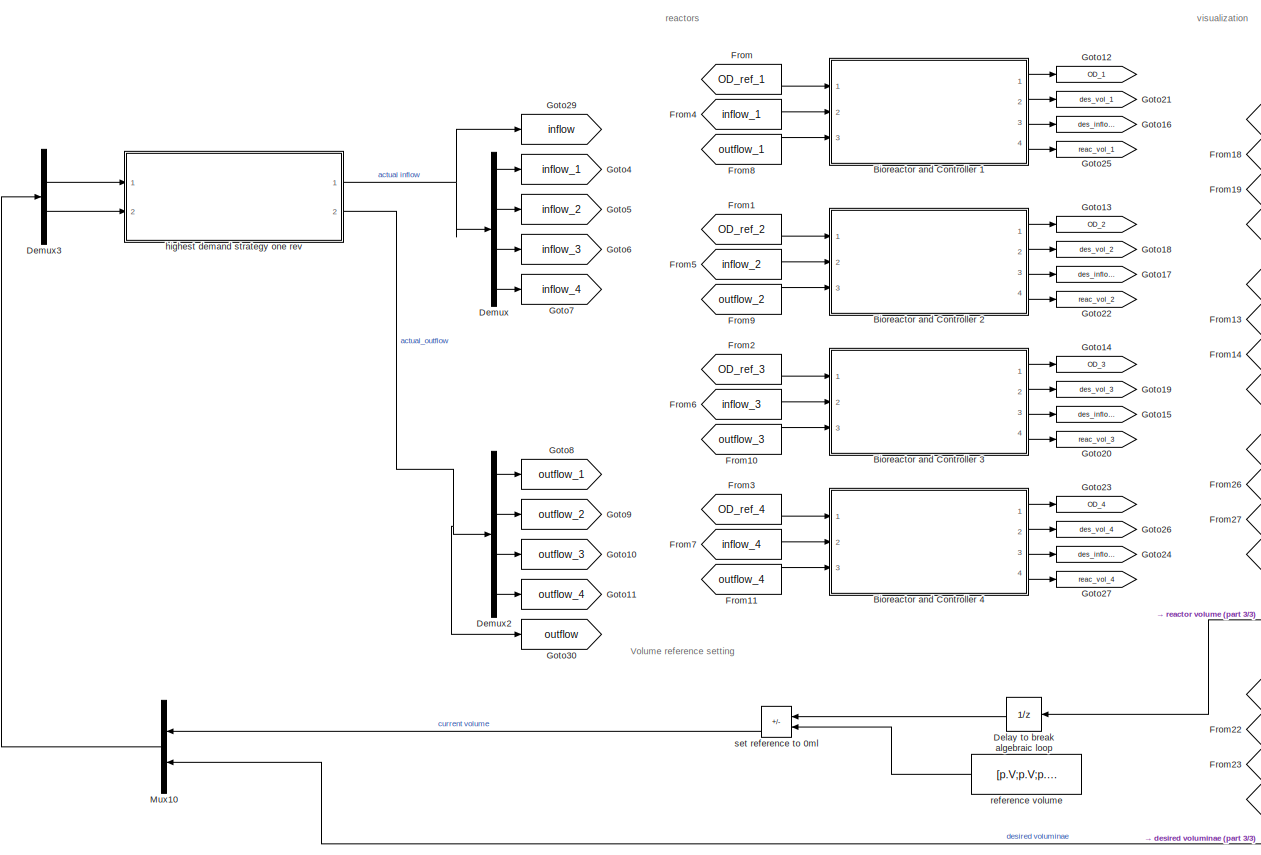
[diagram: root canvas - part 1/3, center side, full height]
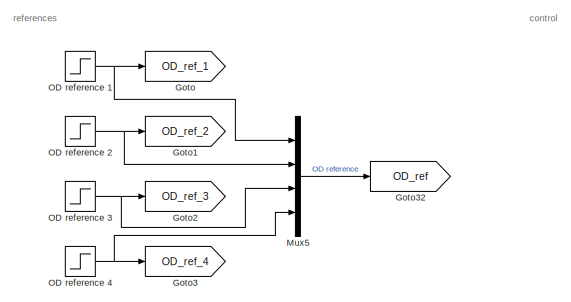
[diagram: root canvas - part 2/3, top left region]
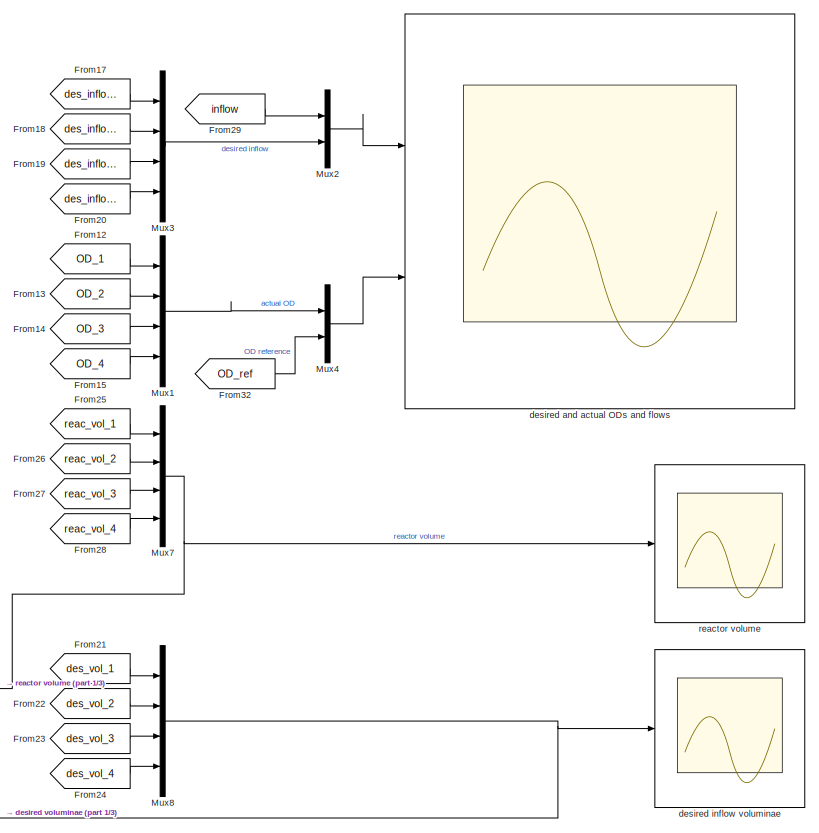
[diagram: root canvas - part 3/3, right side, full height]
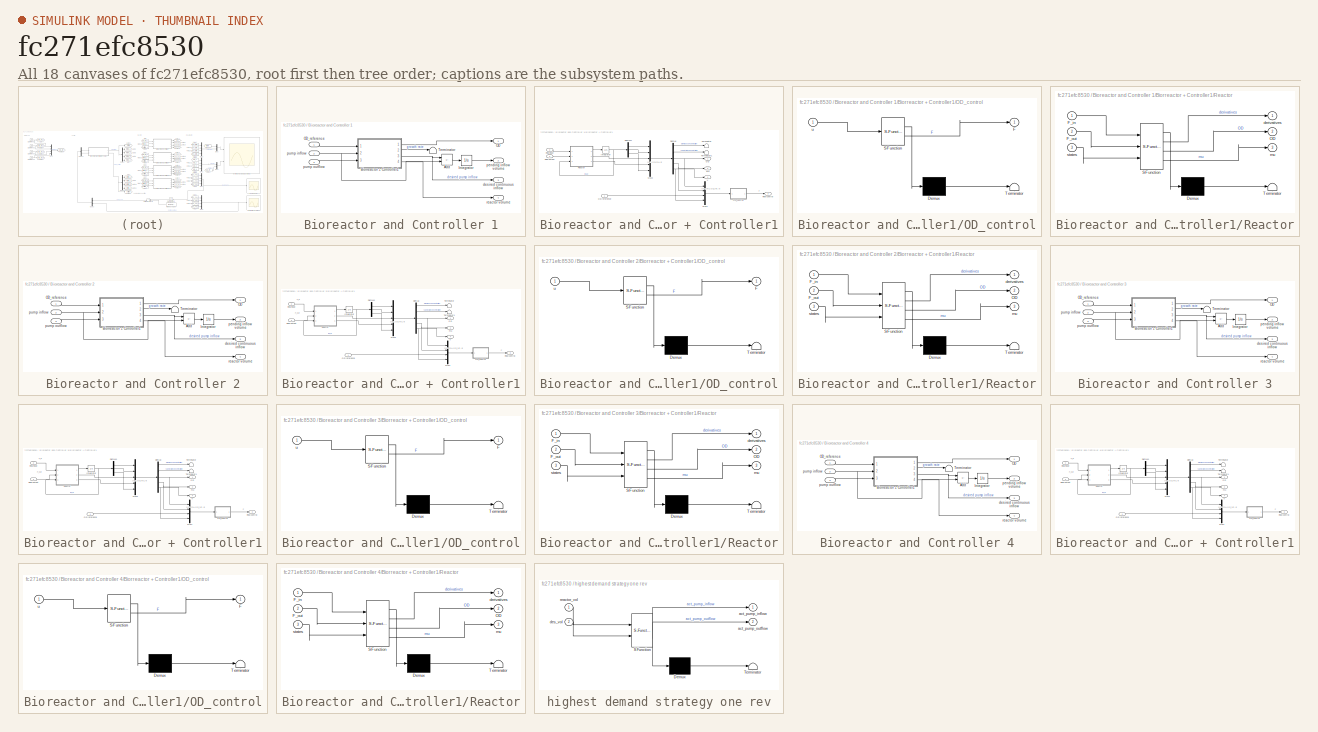
[diagram: thumbnail index - all 18 canvases of the model, root first then tree order]
MODEL slx_fc271efc8530
KIND model
CONFIG AbsTol = 1e-6
CONFIG EnableMultiTasking = off
CONFIG FixedStep = h
CONFIG MaxStep = 1
CONFIG MinStep = auto
CONFIG RelTol = 1e-3
CONFIG SampleTimeConstraint = Unconstrained
CONFIG SolverName = FixedStepAuto
CONFIG StartTime = 0.0
CONFIG StopTime = 1000
BLOCK [SubSystem] Bioreactor and Controller 1
  Ports = [3, 4]
  RequestExecContextInheritance = off
BLOCK [Sum] Bioreactor and Controller 1/Add
  IconShape = rectangular
  Inputs = +-
  Ports = [2, 1]
BLOCK [SubSystem] Bioreactor and Controller 1/Biorreactor + Controller1
  Ports = [3, 4]
  RequestExecContextInheritance = off
BLOCK [Demux] Bioreactor and Controller 1/Biorreactor + Controller1/Demux
  Outputs = 5
  Ports = [1, 5]
BLOCK [Demux] Bioreactor and Controller 1/Biorreactor + Controller1/Demux1
  Outputs = 3
  Ports = [1, 3]
BLOCK [Outport] Bioreactor and Controller 1/Biorreactor + Controller1/Flow control
  Port = 3
BLOCK [Inport] Bioreactor and Controller 1/Biorreactor + Controller1/Flow input
  Port = 2
BLOCK [Inport] Bioreactor and Controller 1/Biorreactor + Controller1/Flow output
  Port = 3
BLOCK [Integrator] Bioreactor and Controller 1/Biorreactor + Controller1/Integrator
  InitialCondition = [0.1 16 15]
  Ports = [1, 1]
BLOCK [Mux] Bioreactor and Controller 1/Biorreactor + Controller1/Mux1
  DisplayOption = bar
  Ports = [4, 1]
BLOCK [Mux] Bioreactor and Controller 1/Biorreactor + Controller1/Mux2
  DisplayOption = bar
  Inputs = 5
  Ports = [5, 1]
BLOCK [Outport] Bioreactor and Controller 1/Biorreactor + Controller1/OD
BLOCK [Inport] Bioreactor and Controller 1/Biorreactor + Controller1/OD reference
BLOCK [SubSystem] Bioreactor and Controller 1/Biorreactor + Controller1/OD_control
  ErrorFcn = Stateflow.Translate.translate
  PermitHierarchicalResolution = ExplicitOnly
  Ports = [1, 1]
  RequestExecContextInheritance = off
  SFBlockType = MATLAB Function
  TreatAsAtomicUnit = on
BLOCK [Demux] Bioreactor and Controller 1/Biorreactor + Controller1/OD_control/ Demux 
  Outputs = 1
  Ports = [1, 1]
BLOCK [S-Function] Bioreactor and Controller 1/Biorreactor + Controller1/OD_control/ SFunction 
  EnableBusSupport = on
  FunctionName = sf_sfun
  PortCounts = [1 2]
  Ports = [1, 2]
  SFcnIsStateOwnerBlock = off
  SFunctionDeploymentMode = off
  Tag = Stateflow S-Function 3
BLOCK [Terminator] Bioreactor and Controller 1/Biorreactor + Controller1/OD_control/ Terminator 
BLOCK [Outport] Bioreactor and Controller 1/Biorreactor + Controller1/OD_control/F
BLOCK [Inport] Bioreactor and Controller 1/Biorreactor + Controller1/OD_control/u
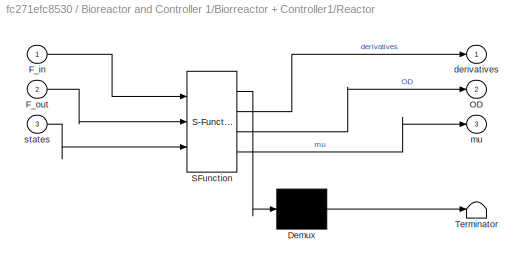
BLOCK [SubSystem] Bioreactor and Controller 1/Biorreactor + Controller1/Reactor
  ErrorFcn = Stateflow.Translate.translate
  PermitHierarchicalResolution = ExplicitOnly
  Ports = [3, 3]
  RequestExecContextInheritance = off
  SFBlockType = MATLAB Function
  TreatAsAtomicUnit = on
BLOCK [Demux] Bioreactor and Controller 1/Biorreactor + Controller1/Reactor/ Demux 
  Outputs = 1
  Ports = [1, 1]
BLOCK [S-Function] Bioreactor and Controller 1/Biorreactor + Controller1/Reactor/ SFunction 
  EnableBusSupport = on
  FunctionName = sf_sfun
  Parameters = p
  PortCounts = [3 4]
  Ports = [3, 4]
  SFcnIsStateOwnerBlock = off
  SFunctionDeploymentMode = off
  Tag = Stateflow S-Function 2
BLOCK [Terminator] Bioreactor and Controller 1/Biorreactor + Controller1/Reactor/ Terminator 
BLOCK [Inport] Bioreactor and Controller 1/Biorreactor + Controller1/Reactor/F_in
BLOCK [Inport] Bioreactor and Controller 1/Biorreactor + Controller1/Reactor/F_out
  Port = 2
BLOCK [Outport] Bioreactor and Controller 1/Biorreactor + Controller1/Reactor/OD
  Port = 2
BLOCK [Outport] Bioreactor and Controller 1/Biorreactor + Controller1/Reactor/derivatives
BLOCK [Outport] Bioreactor and Controller 1/Biorreactor + Controller1/Reactor/mu
  Port = 3
BLOCK [Inport] Bioreactor and Controller 1/Biorreactor + Controller1/Reactor/states
  Port = 3
BLOCK [Terminator] Bioreactor and Controller 1/Biorreactor + Controller1/Terminator
BLOCK [Terminator] Bioreactor and Controller 1/Biorreactor + Controller1/Terminator1
BLOCK [Outport] Bioreactor and Controller 1/Biorreactor + Controller1/V
  Port = 4
BLOCK [Outport] Bioreactor and Controller 1/Biorreactor + Controller1/mu
  Port = 2
BLOCK [Integrator] Bioreactor and Controller 1/Integrator
  Ports = [1, 1]
BLOCK [Outport] Bioreactor and Controller 1/OD
BLOCK [Inport] Bioreactor and Controller 1/OD_reference
BLOCK [Terminator] Bioreactor and Controller 1/Terminator
BLOCK [Outport] Bioreactor and Controller 1/desired continuous inflow
  Port = 3
BLOCK [Outport] Bioreactor and Controller 1/pending inflow volume
  Port = 2
BLOCK [Inport] Bioreactor and Controller 1/pump inflow
  Port = 2
BLOCK [Inport] Bioreactor and Controller 1/pump outflow
  Port = 3
BLOCK [Outport] Bioreactor and Controller 1/reactor volume
  Port = 4
BLOCK [SubSystem] Bioreactor and Controller 2
  Ports = [3, 4]
  RequestExecContextInheritance = off
BLOCK [Sum] Bioreactor and Controller 2/Add
  IconShape = rectangular
  Inputs = +-
  Ports = [2, 1]
BLOCK [SubSystem] Bioreactor and Controller 2/Biorreactor + Controller1
  Ports = [3, 4]
  RequestExecContextInheritance = off
BLOCK [Demux] Bioreactor and Controller 2/Biorreactor + Controller1/Demux
  Outputs = 5
  Ports = [1, 5]
BLOCK [Demux] Bioreactor and Controller 2/Biorreactor + Controller1/Demux1
  Outputs = 3
  Ports = [1, 3]
BLOCK [Outport] Bioreactor and Controller 2/Biorreactor + Controller1/Flow control
  Port = 3
BLOCK [Inport] Bioreactor and Controller 2/Biorreactor + Controller1/Flow input
  Port = 2
BLOCK [Inport] Bioreactor and Controller 2/Biorreactor + Controller1/Flow output
  Port = 3
BLOCK [Integrator] Bioreactor and Controller 2/Biorreactor + Controller1/Integrator
  InitialCondition = [0.1 16 15]
  Ports = [1, 1]
BLOCK [Mux] Bioreactor and Controller 2/Biorreactor + Controller1/Mux1
  DisplayOption = bar
  Ports = [4, 1]
BLOCK [Mux] Bioreactor and Controller 2/Biorreactor + Controller1/Mux2
  DisplayOption = bar
  Inputs = 5
  Ports = [5, 1]
BLOCK [Outport] Bioreactor and Controller 2/Biorreactor + Controller1/OD
BLOCK [Inport] Bioreactor and Controller 2/Biorreactor + Controller1/OD reference
BLOCK [SubSystem] Bioreactor and Controller 2/Biorreactor + Controller1/OD_control
  ErrorFcn = Stateflow.Translate.translate
  PermitHierarchicalResolution = ExplicitOnly
  Ports = [1, 1]
  RequestExecContextInheritance = off
  SFBlockType = MATLAB Function
  TreatAsAtomicUnit = on
BLOCK [Demux] Bioreactor and Controller 2/Biorreactor + Controller1/OD_control/ Demux 
  Outputs = 1
  Ports = [1, 1]
BLOCK [S-Function] Bioreactor and Controller 2/Biorreactor + Controller1/OD_control/ SFunction 
  EnableBusSupport = on
  FunctionName = sf_sfun
  PortCounts = [1 2]
  Ports = [1, 2]
  SFcnIsStateOwnerBlock = off
  SFunctionDeploymentMode = off
  Tag = Stateflow S-Function 4
BLOCK [Terminator] Bioreactor and Controller 2/Biorreactor + Controller1/OD_control/ Terminator 
BLOCK [Outport] Bioreactor and Controller 2/Biorreactor + Controller1/OD_control/F
BLOCK [Inport] Bioreactor and Controller 2/Biorreactor + Controller1/OD_control/u
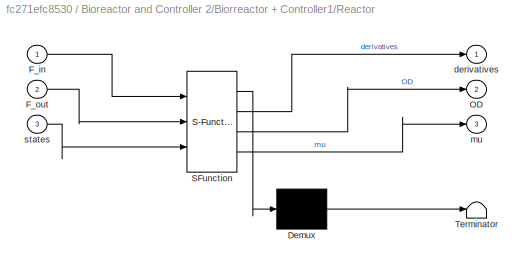
BLOCK [SubSystem] Bioreactor and Controller 2/Biorreactor + Controller1/Reactor
  ErrorFcn = Stateflow.Translate.translate
  PermitHierarchicalResolution = ExplicitOnly
  Ports = [3, 3]
  RequestExecContextInheritance = off
  SFBlockType = MATLAB Function
  TreatAsAtomicUnit = on
BLOCK [Demux] Bioreactor and Controller 2/Biorreactor + Controller1/Reactor/ Demux 
  Outputs = 1
  Ports = [1, 1]
BLOCK [S-Function] Bioreactor and Controller 2/Biorreactor + Controller1/Reactor/ SFunction 
  EnableBusSupport = on
  FunctionName = sf_sfun
  Parameters = p
  PortCounts = [3 4]
  Ports = [3, 4]
  SFcnIsStateOwnerBlock = off
  SFunctionDeploymentMode = off
  Tag = Stateflow S-Function 5
BLOCK [Terminator] Bioreactor and Controller 2/Biorreactor + Controller1/Reactor/ Terminator 
BLOCK [Inport] Bioreactor and Controller 2/Biorreactor + Controller1/Reactor/F_in
BLOCK [Inport] Bioreactor and Controller 2/Biorreactor + Controller1/Reactor/F_out
  Port = 2
BLOCK [Outport] Bioreactor and Controller 2/Biorreactor + Controller1/Reactor/OD
  Port = 2
BLOCK [Outport] Bioreactor and Controller 2/Biorreactor + Controller1/Reactor/derivatives
BLOCK [Outport] Bioreactor and Controller 2/Biorreactor + Controller1/Reactor/mu
  Port = 3
BLOCK [Inport] Bioreactor and Controller 2/Biorreactor + Controller1/Reactor/states
  Port = 3
BLOCK [Terminator] Bioreactor and Controller 2/Biorreactor + Controller1/Terminator
BLOCK [Terminator] Bioreactor and Controller 2/Biorreactor + Controller1/Terminator1
BLOCK [Outport] Bioreactor and Controller 2/Biorreactor + Controller1/V
  Port = 4
BLOCK [Outport] Bioreactor and Controller 2/Biorreactor + Controller1/mu
  Port = 2
BLOCK [Integrator] Bioreactor and Controller 2/Integrator
  Ports = [1, 1]
BLOCK [Outport] Bioreactor and Controller 2/OD
BLOCK [Inport] Bioreactor and Controller 2/OD_reference
BLOCK [Terminator] Bioreactor and Controller 2/Terminator
BLOCK [Outport] Bioreactor and Controller 2/desired continuous inflow
  Port = 3
BLOCK [Outport] Bioreactor and Controller 2/pending inflow volume
  Port = 2
BLOCK [Inport] Bioreactor and Controller 2/pump inflow
  Port = 2
BLOCK [Inport] Bioreactor and Controller 2/pump outflow
  Port = 3
BLOCK [Outport] Bioreactor and Controller 2/reactor volume
  Port = 4
BLOCK [SubSystem] Bioreactor and Controller 3
  Ports = [3, 4]
  RequestExecContextInheritance = off
BLOCK [Sum] Bioreactor and Controller 3/Add
  IconShape = rectangular
  Inputs = +-
  Ports = [2, 1]
BLOCK [SubSystem] Bioreactor and Controller 3/Biorreactor + Controller1
  Ports = [3, 4]
  RequestExecContextInheritance = off
BLOCK [Demux] Bioreactor and Controller 3/Biorreactor + Controller1/Demux
  Outputs = 5
  Ports = [1, 5]
BLOCK [Demux] Bioreactor and Controller 3/Biorreactor + Controller1/Demux1
  Outputs = 3
  Ports = [1, 3]
BLOCK [Outport] Bioreactor and Controller 3/Biorreactor + Controller1/Flow control
  Port = 3
BLOCK [Inport] Bioreactor and Controller 3/Biorreactor + Controller1/Flow input
  Port = 2
BLOCK [Inport] Bioreactor and Controller 3/Biorreactor + Controller1/Flow output
  Port = 3
BLOCK [Integrator] Bioreactor and Controller 3/Biorreactor + Controller1/Integrator
  InitialCondition = [0.1 16 15]
  Ports = [1, 1]
BLOCK [Mux] Bioreactor and Controller 3/Biorreactor + Controller1/Mux1
  DisplayOption = bar
  Ports = [4, 1]
BLOCK [Mux] Bioreactor and Controller 3/Biorreactor + Controller1/Mux2
  DisplayOption = bar
  Inputs = 5
  Ports = [5, 1]
BLOCK [Outport] Bioreactor and Controller 3/Biorreactor + Controller1/OD
BLOCK [Inport] Bioreactor and Controller 3/Biorreactor + Controller1/OD reference
BLOCK [SubSystem] Bioreactor and Controller 3/Biorreactor + Controller1/OD_control
  ErrorFcn = Stateflow.Translate.translate
  PermitHierarchicalResolution = ExplicitOnly
  Ports = [1, 1]
  RequestExecContextInheritance = off
  SFBlockType = MATLAB Function
  TreatAsAtomicUnit = on
BLOCK [Demux] Bioreactor and Controller 3/Biorreactor + Controller1/OD_control/ Demux 
  Outputs = 1
  Ports = [1, 1]
BLOCK [S-Function] Bioreactor and Controller 3/Biorreactor + Controller1/OD_control/ SFunction 
  EnableBusSupport = on
  FunctionName = sf_sfun
  PortCounts = [1 2]
  Ports = [1, 2]
  SFcnIsStateOwnerBlock = off
  SFunctionDeploymentMode = off
  Tag = Stateflow S-Function 6
BLOCK [Terminator] Bioreactor and Controller 3/Biorreactor + Controller1/OD_control/ Terminator 
BLOCK [Outport] Bioreactor and Controller 3/Biorreactor + Controller1/OD_control/F
BLOCK [Inport] Bioreactor and Controller 3/Biorreactor + Controller1/OD_control/u
BLOCK [SubSystem] Bioreactor and Controller 3/Biorreactor + Controller1/Reactor
  ErrorFcn = Stateflow.Translate.translate
  PermitHierarchicalResolution = ExplicitOnly
  Ports = [3, 3]
  RequestExecContextInheritance = off
  SFBlockType = MATLAB Function
  TreatAsAtomicUnit = on
BLOCK [Demux] Bioreactor and Controller 3/Biorreactor + Controller1/Reactor/ Demux 
  Outputs = 1
  Ports = [1, 1]
BLOCK [S-Function] Bioreactor and Controller 3/Biorreactor + Controller1/Reactor/ SFunction 
  EnableBusSupport = on
  FunctionName = sf_sfun
  Parameters = p
  PortCounts = [3 4]
  Ports = [3, 4]
  SFcnIsStateOwnerBlock = off
  SFunctionDeploymentMode = off
  Tag = Stateflow S-Function 7
BLOCK [Terminator] Bioreactor and Controller 3/Biorreactor + Controller1/Reactor/ Terminator 
BLOCK [Inport] Bioreactor and Controller 3/Biorreactor + Controller1/Reactor/F_in
BLOCK [Inport] Bioreactor and Controller 3/Biorreactor + Controller1/Reactor/F_out
  Port = 2
BLOCK [Outport] Bioreactor and Controller 3/Biorreactor + Controller1/Reactor/OD
  Port = 2
BLOCK [Outport] Bioreactor and Controller 3/Biorreactor + Controller1/Reactor/derivatives
BLOCK [Outport] Bioreactor and Controller 3/Biorreactor + Controller1/Reactor/mu
  Port = 3
BLOCK [Inport] Bioreactor and Controller 3/Biorreactor + Controller1/Reactor/states
  Port = 3
BLOCK [Terminator] Bioreactor and Controller 3/Biorreactor + Controller1/Terminator
BLOCK [Terminator] Bioreactor and Controller 3/Biorreactor + Controller1/Terminator1
BLOCK [Outport] Bioreactor and Controller 3/Biorreactor + Controller1/V
  Port = 4
BLOCK [Outport] Bioreactor and Controller 3/Biorreactor + Controller1/mu
  Port = 2
BLOCK [Integrator] Bioreactor and Controller 3/Integrator
  Ports = [1, 1]
BLOCK [Outport] Bioreactor and Controller 3/OD
BLOCK [Inport] Bioreactor and Controller 3/OD_reference
BLOCK [Terminator] Bioreactor and Controller 3/Terminator
BLOCK [Outport] Bioreactor and Controller 3/desired continuous inflow
  Port = 3
BLOCK [Outport] Bioreactor and Controller 3/pending inflow volume
  Port = 2
BLOCK [Inport] Bioreactor and Controller 3/pump inflow
  Port = 2
BLOCK [Inport] Bioreactor and Controller 3/pump outflow
  Port = 3
BLOCK [Outport] Bioreactor and Controller 3/reactor volume
  Port = 4
BLOCK [SubSystem] Bioreactor and Controller 4
  Ports = [3, 4]
  RequestExecContextInheritance = off
BLOCK [Sum] Bioreactor and Controller 4/Add
  IconShape = rectangular
  Inputs = +-
  Ports = [2, 1]
BLOCK [SubSystem] Bioreactor and Controller 4/Biorreactor + Controller1
  Ports = [3, 4]
  RequestExecContextInheritance = off
BLOCK [Demux] Bioreactor and Controller 4/Biorreactor + Controller1/Demux
  Outputs = 5
  Ports = [1, 5]
BLOCK [Demux] Bioreactor and Controller 4/Biorreactor + Controller1/Demux1
  Outputs = 3
  Ports = [1, 3]
BLOCK [Outport] Bioreactor and Controller 4/Biorreactor + Controller1/Flow control
  Port = 3
BLOCK [Inport] Bioreactor and Controller 4/Biorreactor + Controller1/Flow input
  Port = 2
BLOCK [Inport] Bioreactor and Controller 4/Biorreactor + Controller1/Flow output
  Port = 3
BLOCK [Integrator] Bioreactor and Controller 4/Biorreactor + Controller1/Integrator
  InitialCondition = [0.1 16 15]
  Ports = [1, 1]
BLOCK [Mux] Bioreactor and Controller 4/Biorreactor + Controller1/Mux1
  DisplayOption = bar
  Ports = [4, 1]
BLOCK [Mux] Bioreactor and Controller 4/Biorreactor + Controller1/Mux2
  DisplayOption = bar
  Inputs = 5
  Ports = [5, 1]
BLOCK [Outport] Bioreactor and Controller 4/Biorreactor + Controller1/OD
BLOCK [Inport] Bioreactor and Controller 4/Biorreactor + Controller1/OD reference
BLOCK [SubSystem] Bioreactor and Controller 4/Biorreactor + Controller1/OD_control
  ErrorFcn = Stateflow.Translate.translate
  PermitHierarchicalResolution = ExplicitOnly
  Ports = [1, 1]
  RequestExecContextInheritance = off
  SFBlockType = MATLAB Function
  TreatAsAtomicUnit = on
BLOCK [Demux] Bioreactor and Controller 4/Biorreactor + Controller1/OD_control/ Demux 
  Outputs = 1
  Ports = [1, 1]
BLOCK [S-Function] Bioreactor and Controller 4/Biorreactor + Controller1/OD_control/ SFunction 
  EnableBusSupport = on
  FunctionName = sf_sfun
  PortCounts = [1 2]
  Ports = [1, 2]
  SFcnIsStateOwnerBlock = off
  SFunctionDeploymentMode = off
  Tag = Stateflow S-Function 8
BLOCK [Terminator] Bioreactor and Controller 4/Biorreactor + Controller1/OD_control/ Terminator 
BLOCK [Outport] Bioreactor and Controller 4/Biorreactor + Controller1/OD_control/F
BLOCK [Inport] Bioreactor and Controller 4/Biorreactor + Controller1/OD_control/u
BLOCK [SubSystem] Bioreactor and Controller 4/Biorreactor + Controller1/Reactor
  ErrorFcn = Stateflow.Translate.translate
  PermitHierarchicalResolution = ExplicitOnly
  Ports = [3, 3]
  RequestExecContextInheritance = off
  SFBlockType = MATLAB Function
  TreatAsAtomicUnit = on
BLOCK [Demux] Bioreactor and Controller 4/Biorreactor + Controller1/Reactor/ Demux 
  Outputs = 1
  Ports = [1, 1]
BLOCK [S-Function] Bioreactor and Controller 4/Biorreactor + Controller1/Reactor/ SFunction 
  EnableBusSupport = on
  FunctionName = sf_sfun
  Parameters = p
  PortCounts = [3 4]
  Ports = [3, 4]
  SFcnIsStateOwnerBlock = off
  SFunctionDeploymentMode = off
  Tag = Stateflow S-Function 9
BLOCK [Terminator] Bioreactor and Controller 4/Biorreactor + Controller1/Reactor/ Terminator 
BLOCK [Inport] Bioreactor and Controller 4/Biorreactor + Controller1/Reactor/F_in
BLOCK [Inport] Bioreactor and Controller 4/Biorreactor + Controller1/Reactor/F_out
  Port = 2
BLOCK [Outport] Bioreactor and Controller 4/Biorreactor + Controller1/Reactor/OD
  Port = 2
BLOCK [Outport] Bioreactor and Controller 4/Biorreactor + Controller1/Reactor/derivatives
BLOCK [Outport] Bioreactor and Controller 4/Biorreactor + Controller1/Reactor/mu
  Port = 3
BLOCK [Inport] Bioreactor and Controller 4/Biorreactor + Controller1/Reactor/states
  Port = 3
BLOCK [Terminator] Bioreactor and Controller 4/Biorreactor + Controller1/Terminator
BLOCK [Terminator] Bioreactor and Controller 4/Biorreactor + Controller1/Terminator1
BLOCK [Outport] Bioreactor and Controller 4/Biorreactor + Controller1/V
  Port = 4
BLOCK [Outport] Bioreactor and Controller 4/Biorreactor + Controller1/mu
  Port = 2
BLOCK [Integrator] Bioreactor and Controller 4/Integrator
  Ports = [1, 1]
BLOCK [Outport] Bioreactor and Controller 4/OD
BLOCK [Inport] Bioreactor and Controller 4/OD_reference
BLOCK [Terminator] Bioreactor and Controller 4/Terminator
BLOCK [Outport] Bioreactor and Controller 4/desired continuous inflow
  Port = 3
BLOCK [Outport] Bioreactor and Controller 4/pending inflow volume
  Port = 2
BLOCK [Inport] Bioreactor and Controller 4/pump inflow
  Port = 2
BLOCK [Inport] Bioreactor and Controller 4/pump outflow
  Port = 3
BLOCK [Outport] Bioreactor and Controller 4/reactor volume
  Port = 4
BLOCK [UnitDelay] Delay to break algebraic loop
  HasFrameUpgradeWarning = on
  InitialCondition = [15; 15; 15; 15]
  NameLocation = top
  SampleTime = -1
BLOCK [Demux] Demux
  Ports = [1, 4]
BLOCK [Demux] Demux2
  Ports = [1, 4]
BLOCK [Demux] Demux3
  Outputs = 2
  Ports = [1, 2]
BLOCK [From] From
  GotoTag = OD_ref_1
BLOCK [From] From1
  GotoTag = OD_ref_2
BLOCK [From] From10
  GotoTag = outflow_3
BLOCK [From] From11
  GotoTag = outflow_4
BLOCK [From] From12
  GotoTag = OD_1
BLOCK [From] From13
  GotoTag = OD_2
BLOCK [From] From14
  GotoTag = OD_3
BLOCK [From] From15
  GotoTag = OD_4
BLOCK [From] From17
  GotoTag = des_inflow_1
BLOCK [From] From18
  GotoTag = des_inflow_2
BLOCK [From] From19
  GotoTag = des_inflow_3
BLOCK [From] From2
  GotoTag = OD_ref_3
BLOCK [From] From20
  GotoTag = des_inflow_4
BLOCK [From] From21
  GotoTag = des_vol_1
BLOCK [From] From22
  GotoTag = des_vol_2
BLOCK [From] From23
  GotoTag = des_vol_3
BLOCK [From] From24
  GotoTag = des_vol_4
BLOCK [From] From25
  GotoTag = reac_vol_1
BLOCK [From] From26
  GotoTag = reac_vol_2
BLOCK [From] From27
  GotoTag = reac_vol_3
BLOCK [From] From28
  GotoTag = reac_vol_4
BLOCK [From] From29
  GotoTag = inflow
BLOCK [From] From3
  GotoTag = OD_ref_4
BLOCK [From] From32
  GotoTag = OD_ref
BLOCK [From] From4
  GotoTag = inflow_1
BLOCK [From] From5
  GotoTag = inflow_2
BLOCK [From] From6
  GotoTag = inflow_3
BLOCK [From] From7
  GotoTag = inflow_4
BLOCK [From] From8
  GotoTag = outflow_1
BLOCK [From] From9
  GotoTag = outflow_2
BLOCK [Goto] Goto
  GotoTag = OD_ref_1
BLOCK [Goto] Goto1
  GotoTag = OD_ref_2
BLOCK [Goto] Goto10
  GotoTag = outflow_3
BLOCK [Goto] Goto11
  GotoTag = outflow_4
BLOCK [Goto] Goto12
  GotoTag = OD_1
BLOCK [Goto] Goto13
  GotoTag = OD_2
BLOCK [Goto] Goto14
  GotoTag = OD_3
BLOCK [Goto] Goto15
  GotoTag = des_inflow_3
BLOCK [Goto] Goto16
  GotoTag = des_inflow_1
BLOCK [Goto] Goto17
  GotoTag = des_inflow_2
BLOCK [Goto] Goto18
  GotoTag = des_vol_2
BLOCK [Goto] Goto19
  GotoTag = des_vol_3
BLOCK [Goto] Goto2
  GotoTag = OD_ref_3
BLOCK [Goto] Goto20
  GotoTag = reac_vol_3
BLOCK [Goto] Goto21
  GotoTag = des_vol_1
BLOCK [Goto] Goto22
  GotoTag = reac_vol_2
BLOCK [Goto] Goto23
  GotoTag = OD_4
BLOCK [Goto] Goto24
  GotoTag = des_inflow_4
BLOCK [Goto] Goto25
  GotoTag = reac_vol_1
BLOCK [Goto] Goto26
  GotoTag = des_vol_4
BLOCK [Goto] Goto27
  GotoTag = reac_vol_4
BLOCK [Goto] Goto29
  GotoTag = inflow
BLOCK [Goto] Goto3
  GotoTag = OD_ref_4
BLOCK [Goto] Goto30
  GotoTag = outflow
BLOCK [Goto] Goto32
  GotoTag = OD_ref
BLOCK [Goto] Goto4
  GotoTag = inflow_1
BLOCK [Goto] Goto5
  GotoTag = inflow_2
BLOCK [Goto] Goto6
  GotoTag = inflow_3
BLOCK [Goto] Goto7
  GotoTag = inflow_4
BLOCK [Goto] Goto8
  GotoTag = outflow_1
BLOCK [Goto] Goto9
  GotoTag = outflow_2
BLOCK [Mux] Mux1
  DisplayOption = bar
  Ports = [4, 1]
BLOCK [Mux] Mux10
  DisplayOption = bar
  Inputs = 2
  NameLocation = top
  Ports = [2, 1]
BLOCK [Mux] Mux2
  DisplayOption = bar
  Inputs = 2
  Ports = [2, 1]
BLOCK [Mux] Mux3
  DisplayOption = bar
  Ports = [4, 1]
BLOCK [Mux] Mux4
  DisplayOption = bar
  Inputs = 2
  Ports = [2, 1]
BLOCK [Mux] Mux5
  DisplayOption = bar
  Ports = [4, 1]
BLOCK [Mux] Mux7
  DisplayOption = bar
  Ports = [4, 1]
BLOCK [Mux] Mux8
  DisplayOption = bar
  Ports = [4, 1]
BLOCK [Step] OD reference 1
  After = p.r1.final_val
  Before = p.r1.init_val
  SampleTime = 0
  Time = p.r1.step_time
BLOCK [Step] OD reference 2
  After = p.r2.final_val
  Before = p.r2.init_val
  SampleTime = 0
  Time = p.r2.step_time
BLOCK [Step] OD reference 3
  After = p.r3.final_val
  Before = p.r3.init_val
  SampleTime = 0
  Time = p.r3.step_time
BLOCK [Step] OD reference 4
  After = p.r4.final_val
  Before = p.r4.init_val
  SampleTime = 0
  Time = p.r4.step_time
BLOCK [Scope] desired and actual ODs and flows
  Floating = off
  NumInputPorts = 2
  Ports = [2]
  ScopeSpecificationString = Simulink.scopes.TimeScopeBlockCfg('CurrentConfiguration', extmgr.ConfigurationSet(extmgr.Configuration('Core','General UI',true),extmgr.Configuration('Core','Source UI',true),extmgr.Configuration('Sources','WiredSimulink',true,'DataLoggingVariableName','ScopeData1'),extmgr.Configuration('Visuals','Time Domain',true,'SerializedDisplays',{struct('MinYLimReal','-4.825','MaxYLimReal','43.425','YLabelR...<+2469ch>
BLOCK [Scope] desired inflow voluminae
  Floating = off
  NumInputPorts = 1
  Ports = [1]
  ScopeSpecificationString = Simulink.scopes.TimeScopeBlockCfg('CurrentConfiguration', extmgr.ConfigurationSet(extmgr.Configuration('Core','General UI',true),extmgr.Configuration('Core','Source UI',true),extmgr.Configuration('Sources','WiredSimulink',true,'DataLoggingVariableName','ScopeData1'),extmgr.Configuration('Visuals','Time Domain',true,'SerializedDisplays',{struct('MinYLimReal','-0.19491','MaxYLimReal','1.37807','YLab...<+1576ch>
BLOCK [SubSystem] highest demand strategy one rev
  ErrorFcn = Stateflow.Translate.translate
  PermitHierarchicalResolution = ExplicitOnly
  Ports = [2, 2]
  RequestExecContextInheritance = off
  SFBlockType = Chart
  TreatAsAtomicUnit = on
BLOCK [Demux] highest demand strategy one rev/ Demux 
  Outputs = 1
  Ports = [1, 1]
BLOCK [S-Function] highest demand strategy one rev/ SFunction 
  EnableBusSupport = on
  FunctionName = sf_sfun
  Parameters = p
  PortCounts = [2 3]
  Ports = [2, 3]
  SFcnIsStateOwnerBlock = off
  SFunctionDeploymentMode = off
  Tag = Stateflow S-Function 1
BLOCK [Terminator] highest demand strategy one rev/ Terminator 
BLOCK [Outport] highest demand strategy one rev/act_pump_inflow
BLOCK [Outport] highest demand strategy one rev/act_pump_outflow
  Port = 2
BLOCK [Inport] highest demand strategy one rev/des_vol
  Port = 2
BLOCK [Inport] highest demand strategy one rev/reactor_vol
BLOCK [Scope] reactor volume
  Floating = off
  NumInputPorts = 1
  Ports = [1]
  ScopeSpecificationString = Simulink.scopes.TimeScopeBlockCfg('CurrentConfiguration', extmgr.ConfigurationSet(extmgr.Configuration('Core','General UI',true),extmgr.Configuration('Core','Source UI',true),extmgr.Configuration('Sources','WiredSimulink',true,'DataLoggingVariableName','ScopeData1'),extmgr.Configuration('Visuals','Time Domain',true,'SerializedDisplays',{struct('MinYLimReal','14.67672','MaxYLimReal','17.13747','YLa...<+1532ch>
BLOCK [Constant] reference volume
  NameLocation = top
  Value = [p.V;p.V;p.V;p.V]
BLOCK [Sum] set reference to 0ml
  IconShape = rectangular
  Inputs = +-
  NameLocation = top
  Ports = [2, 1]
ANNOTATION (root): Volume reference setting
ANNOTATION (root): control
ANNOTATION (root): reactors
ANNOTATION (root): references
ANNOTATION (root): visualization
ANNOTATION Bioreactor and Controller 1/Biorreactor + Controller1: F
ANNOTATION Bioreactor and Controller 1/Biorreactor + Controller1: [OD,mu,OD_ref,V]
ANNOTATION Bioreactor and Controller 1/Biorreactor + Controller1: [x,s,OD,mu,V]
ANNOTATION Bioreactor and Controller 2/Biorreactor + Controller1: F
ANNOTATION Bioreactor and Controller 2/Biorreactor + Controller1: F_in
ANNOTATION Bioreactor and Controller 2/Biorreactor + Controller1: F_out
ANNOTATION Bioreactor and Controller 2/Biorreactor + Controller1: [OD,mu,OD_ref,V]
ANNOTATION Bioreactor and Controller 2/Biorreactor + Controller1: [x,s,OD,mu,V]
ANNOTATION Bioreactor and Controller 3/Biorreactor + Controller1: F
ANNOTATION Bioreactor and Controller 3/Biorreactor + Controller1: F_in
ANNOTATION Bioreactor and Controller 3/Biorreactor + Controller1: F_out
ANNOTATION Bioreactor and Controller 3/Biorreactor + Controller1: [OD,mu,OD_ref,V]
ANNOTATION Bioreactor and Controller 3/Biorreactor + Controller1: [x,s,OD,mu,V]
ANNOTATION Bioreactor and Controller 4/Biorreactor + Controller1: F
ANNOTATION Bioreactor and Controller 4/Biorreactor + Controller1: F_in
ANNOTATION Bioreactor and Controller 4/Biorreactor + Controller1: F_out
ANNOTATION Bioreactor and Controller 4/Biorreactor + Controller1: [OD,mu,OD_ref,V]
ANNOTATION Bioreactor and Controller 4/Biorreactor + Controller1: [x,s,OD,mu,V]
LINE Bioreactor and Controller 1/Add:1 -> Bioreactor and Controller 1/Integrator:1
LINE Bioreactor and Controller 1/Biorreactor + Controller1/Demux1:1 -> Bioreactor and Controller 1/Biorreactor + Controller1/Mux2:1
LINE Bioreactor and Controller 1/Biorreactor + Controller1/Demux1:2 -> Bioreactor and Controller 1/Biorreactor + Controller1/Mux2:2
LINE Bioreactor and Controller 1/Biorreactor + Controller1/Demux1:3 -> Bioreactor and Controller 1/Biorreactor + Controller1/Mux2:5
LINE Bioreactor and Controller 1/Biorreactor + Controller1/Demux:1 -> Bioreactor and Controller 1/Biorreactor + Controller1/Terminator:1
LINE Bioreactor and Controller 1/Biorreactor + Controller1/Demux:2 -> Bioreactor and Controller 1/Biorreactor + Controller1/Terminator1:1
NET Bioreactor and Controller 1/Biorreactor + Controller1/Demux:3 -> Bioreactor and Controller 1/Biorreactor + Controller1/Mux1:1, Bioreactor and Controller 1/Biorreactor + Controller1/OD:1
NET Bioreactor and Controller 1/Biorreactor + Controller1/Demux:4 -> Bioreactor and Controller 1/Biorreactor + Controller1/Mux1:2, Bioreactor and Controller 1/Biorreactor + Controller1/mu:1
NET Bioreactor and Controller 1/Biorreactor + Controller1/Demux:5 -> Bioreactor and Controller 1/Biorreactor + Controller1/Mux1:4, Bioreactor and Controller 1/Biorreactor + Controller1/V:1
LINE Bioreactor and Controller 1/Biorreactor + Controller1/Flow input:1 -> Bioreactor and Controller 1/Biorreactor + Controller1/Reactor:1
LINE Bioreactor and Controller 1/Biorreactor + Controller1/Flow output:1 -> Bioreactor and Controller 1/Biorreactor + Controller1/Reactor:2
NET Bioreactor and Controller 1/Biorreactor + Controller1/Integrator:1 -> Bioreactor and Controller 1/Biorreactor + Controller1/Demux1:1, Bioreactor and Controller 1/Biorreactor + Controller1/Reactor:3
LINE Bioreactor and Controller 1/Biorreactor + Controller1/Mux1:1 -> Bioreactor and Controller 1/Biorreactor + Controller1/OD_control:1
LINE Bioreactor and Controller 1/Biorreactor + Controller1/Mux2:1 -> Bioreactor and Controller 1/Biorreactor + Controller1/Demux:1
LINE Bioreactor and Controller 1/Biorreactor + Controller1/OD reference:1 -> Bioreactor and Controller 1/Biorreactor + Controller1/Mux1:3
LINE Bioreactor and Controller 1/Biorreactor + Controller1/OD_control:1 -> Bioreactor and Controller 1/Biorreactor + Controller1/Flow control:1
LINE Bioreactor and Controller 1/Biorreactor + Controller1/Reactor:1 -> Bioreactor and Controller 1/Biorreactor + Controller1/Integrator:1
LINE Bioreactor and Controller 1/Biorreactor + Controller1/Reactor:2 -> Bioreactor and Controller 1/Biorreactor + Controller1/Mux2:3
LINE Bioreactor and Controller 1/Biorreactor + Controller1/Reactor:3 -> Bioreactor and Controller 1/Biorreactor + Controller1/Mux2:4
LINE Bioreactor and Controller 1/Biorreactor + Controller1:1 -> Bioreactor and Controller 1/OD:1
LINE Bioreactor and Controller 1/Biorreactor + Controller1:2 -> Bioreactor and Controller 1/Terminator:1
NET Bioreactor and Controller 1/Biorreactor + Controller1:3 -> Bioreactor and Controller 1/Add:1, Bioreactor and Controller 1/desired continuous inflow:1
LINE Bioreactor and Controller 1/Biorreactor + Controller1:4 -> Bioreactor and Controller 1/reactor volume:1
LINE Bioreactor and Controller 1/Integrator:1 -> Bioreactor and Controller 1/pending inflow volume:1
LINE Bioreactor and Controller 1/OD_reference:1 -> Bioreactor and Controller 1/Biorreactor + Controller1:1
NET Bioreactor and Controller 1/pump inflow:1 -> Bioreactor and Controller 1/Add:2, Bioreactor and Controller 1/Biorreactor + Controller1:2
LINE Bioreactor and Controller 1/pump outflow:1 -> Bioreactor and Controller 1/Biorreactor + Controller1:3
LINE Bioreactor and Controller 1:1 -> Goto12:1
LINE Bioreactor and Controller 1:2 -> Goto21:1
LINE Bioreactor and Controller 1:3 -> Goto16:1
LINE Bioreactor and Controller 1:4 -> Goto25:1
LINE Bioreactor and Controller 2/Add:1 -> Bioreactor and Controller 2/Integrator:1
LINE Bioreactor and Controller 2/Biorreactor + Controller1/Demux1:1 -> Bioreactor and Controller 2/Biorreactor + Controller1/Mux2:1
LINE Bioreactor and Controller 2/Biorreactor + Controller1/Demux1:2 -> Bioreactor and Controller 2/Biorreactor + Controller1/Mux2:2
LINE Bioreactor and Controller 2/Biorreactor + Controller1/Demux1:3 -> Bioreactor and Controller 2/Biorreactor + Controller1/Mux2:5
LINE Bioreactor and Controller 2/Biorreactor + Controller1/Demux:1 -> Bioreactor and Controller 2/Biorreactor + Controller1/Terminator:1
LINE Bioreactor and Controller 2/Biorreactor + Controller1/Demux:2 -> Bioreactor and Controller 2/Biorreactor + Controller1/Terminator1:1
NET Bioreactor and Controller 2/Biorreactor + Controller1/Demux:3 -> Bioreactor and Controller 2/Biorreactor + Controller1/Mux1:1, Bioreactor and Controller 2/Biorreactor + Controller1/OD:1
NET Bioreactor and Controller 2/Biorreactor + Controller1/Demux:4 -> Bioreactor and Controller 2/Biorreactor + Controller1/Mux1:2, Bioreactor and Controller 2/Biorreactor + Controller1/mu:1
NET Bioreactor and Controller 2/Biorreactor + Controller1/Demux:5 -> Bioreactor and Controller 2/Biorreactor + Controller1/Mux1:4, Bioreactor and Controller 2/Biorreactor + Controller1/V:1
LINE Bioreactor and Controller 2/Biorreactor + Controller1/Flow input:1 -> Bioreactor and Controller 2/Biorreactor + Controller1/Reactor:1
LINE Bioreactor and Controller 2/Biorreactor + Controller1/Flow output:1 -> Bioreactor and Controller 2/Biorreactor + Controller1/Reactor:2
NET Bioreactor and Controller 2/Biorreactor + Controller1/Integrator:1 -> Bioreactor and Controller 2/Biorreactor + Controller1/Demux1:1, Bioreactor and Controller 2/Biorreactor + Controller1/Reactor:3
LINE Bioreactor and Controller 2/Biorreactor + Controller1/Mux1:1 -> Bioreactor and Controller 2/Biorreactor + Controller1/OD_control:1
LINE Bioreactor and Controller 2/Biorreactor + Controller1/Mux2:1 -> Bioreactor and Controller 2/Biorreactor + Controller1/Demux:1
LINE Bioreactor and Controller 2/Biorreactor + Controller1/OD reference:1 -> Bioreactor and Controller 2/Biorreactor + Controller1/Mux1:3
LINE Bioreactor and Controller 2/Biorreactor + Controller1/OD_control:1 -> Bioreactor and Controller 2/Biorreactor + Controller1/Flow control:1
LINE Bioreactor and Controller 2/Biorreactor + Controller1/Reactor:1 -> Bioreactor and Controller 2/Biorreactor + Controller1/Integrator:1
LINE Bioreactor and Controller 2/Biorreactor + Controller1/Reactor:2 -> Bioreactor and Controller 2/Biorreactor + Controller1/Mux2:3
LINE Bioreactor and Controller 2/Biorreactor + Controller1/Reactor:3 -> Bioreactor and Controller 2/Biorreactor + Controller1/Mux2:4
LINE Bioreactor and Controller 2/Biorreactor + Controller1:1 -> Bioreactor and Controller 2/OD:1
LINE Bioreactor and Controller 2/Biorreactor + Controller1:2 -> Bioreactor and Controller 2/Terminator:1
NET Bioreactor and Controller 2/Biorreactor + Controller1:3 -> Bioreactor and Controller 2/Add:1, Bioreactor and Controller 2/desired continuous inflow:1
LINE Bioreactor and Controller 2/Biorreactor + Controller1:4 -> Bioreactor and Controller 2/reactor volume:1
LINE Bioreactor and Controller 2/Integrator:1 -> Bioreactor and Controller 2/pending inflow volume:1
LINE Bioreactor and Controller 2/OD_reference:1 -> Bioreactor and Controller 2/Biorreactor + Controller1:1
NET Bioreactor and Controller 2/pump inflow:1 -> Bioreactor and Controller 2/Add:2, Bioreactor and Controller 2/Biorreactor + Controller1:2
LINE Bioreactor and Controller 2/pump outflow:1 -> Bioreactor and Controller 2/Biorreactor + Controller1:3
LINE Bioreactor and Controller 2:1 -> Goto13:1
LINE Bioreactor and Controller 2:2 -> Goto18:1
LINE Bioreactor and Controller 2:3 -> Goto17:1
LINE Bioreactor and Controller 2:4 -> Goto22:1
LINE Bioreactor and Controller 3/Add:1 -> Bioreactor and Controller 3/Integrator:1
LINE Bioreactor and Controller 3/Biorreactor + Controller1/Demux1:1 -> Bioreactor and Controller 3/Biorreactor + Controller1/Mux2:1
LINE Bioreactor and Controller 3/Biorreactor + Controller1/Demux1:2 -> Bioreactor and Controller 3/Biorreactor + Controller1/Mux2:2
LINE Bioreactor and Controller 3/Biorreactor + Controller1/Demux1:3 -> Bioreactor and Controller 3/Biorreactor + Controller1/Mux2:5
LINE Bioreactor and Controller 3/Biorreactor + Controller1/Demux:1 -> Bioreactor and Controller 3/Biorreactor + Controller1/Terminator:1
LINE Bioreactor and Controller 3/Biorreactor + Controller1/Demux:2 -> Bioreactor and Controller 3/Biorreactor + Controller1/Terminator1:1
NET Bioreactor and Controller 3/Biorreactor + Controller1/Demux:3 -> Bioreactor and Controller 3/Biorreactor + Controller1/Mux1:1, Bioreactor and Controller 3/Biorreactor + Controller1/OD:1
NET Bioreactor and Controller 3/Biorreactor + Controller1/Demux:4 -> Bioreactor and Controller 3/Biorreactor + Controller1/Mux1:2, Bioreactor and Controller 3/Biorreactor + Controller1/mu:1
NET Bioreactor and Controller 3/Biorreactor + Controller1/Demux:5 -> Bioreactor and Controller 3/Biorreactor + Controller1/Mux1:4, Bioreactor and Controller 3/Biorreactor + Controller1/V:1
LINE Bioreactor and Controller 3/Biorreactor + Controller1/Flow input:1 -> Bioreactor and Controller 3/Biorreactor + Controller1/Reactor:1
LINE Bioreactor and Controller 3/Biorreactor + Controller1/Flow output:1 -> Bioreactor and Controller 3/Biorreactor + Controller1/Reactor:2
NET Bioreactor and Controller 3/Biorreactor + Controller1/Integrator:1 -> Bioreactor and Controller 3/Biorreactor + Controller1/Demux1:1, Bioreactor and Controller 3/Biorreactor + Controller1/Reactor:3
LINE Bioreactor and Controller 3/Biorreactor + Controller1/Mux1:1 -> Bioreactor and Controller 3/Biorreactor + Controller1/OD_control:1
LINE Bioreactor and Controller 3/Biorreactor + Controller1/Mux2:1 -> Bioreactor and Controller 3/Biorreactor + Controller1/Demux:1
LINE Bioreactor and Controller 3/Biorreactor + Controller1/OD reference:1 -> Bioreactor and Controller 3/Biorreactor + Controller1/Mux1:3
LINE Bioreactor and Controller 3/Biorreactor + Controller1/OD_control:1 -> Bioreactor and Controller 3/Biorreactor + Controller1/Flow control:1
LINE Bioreactor and Controller 3/Biorreactor + Controller1/Reactor:1 -> Bioreactor and Controller 3/Biorreactor + Controller1/Integrator:1
LINE Bioreactor and Controller 3/Biorreactor + Controller1/Reactor:2 -> Bioreactor and Controller 3/Biorreactor + Controller1/Mux2:3
LINE Bioreactor and Controller 3/Biorreactor + Controller1/Reactor:3 -> Bioreactor and Controller 3/Biorreactor + Controller1/Mux2:4
LINE Bioreactor and Controller 3/Biorreactor + Controller1:1 -> Bioreactor and Controller 3/OD:1
LINE Bioreactor and Controller 3/Biorreactor + Controller1:2 -> Bioreactor and Controller 3/Terminator:1
NET Bioreactor and Controller 3/Biorreactor + Controller1:3 -> Bioreactor and Controller 3/Add:1, Bioreactor and Controller 3/desired continuous inflow:1
LINE Bioreactor and Controller 3/Biorreactor + Controller1:4 -> Bioreactor and Controller 3/reactor volume:1
LINE Bioreactor and Controller 3/Integrator:1 -> Bioreactor and Controller 3/pending inflow volume:1
LINE Bioreactor and Controller 3/OD_reference:1 -> Bioreactor and Controller 3/Biorreactor + Controller1:1
NET Bioreactor and Controller 3/pump inflow:1 -> Bioreactor and Controller 3/Add:2, Bioreactor and Controller 3/Biorreactor + Controller1:2
LINE Bioreactor and Controller 3/pump outflow:1 -> Bioreactor and Controller 3/Biorreactor + Controller1:3
LINE Bioreactor and Controller 3:1 -> Goto14:1
LINE Bioreactor and Controller 3:2 -> Goto19:1
LINE Bioreactor and Controller 3:3 -> Goto15:1
LINE Bioreactor and Controller 3:4 -> Goto20:1
LINE Bioreactor and Controller 4/Add:1 -> Bioreactor and Controller 4/Integrator:1
LINE Bioreactor and Controller 4/Biorreactor + Controller1/Demux1:1 -> Bioreactor and Controller 4/Biorreactor + Controller1/Mux2:1
LINE Bioreactor and Controller 4/Biorreactor + Controller1/Demux1:2 -> Bioreactor and Controller 4/Biorreactor + Controller1/Mux2:2
LINE Bioreactor and Controller 4/Biorreactor + Controller1/Demux1:3 -> Bioreactor and Controller 4/Biorreactor + Controller1/Mux2:5
LINE Bioreactor and Controller 4/Biorreactor + Controller1/Demux:1 -> Bioreactor and Controller 4/Biorreactor + Controller1/Terminator:1
LINE Bioreactor and Controller 4/Biorreactor + Controller1/Demux:2 -> Bioreactor and Controller 4/Biorreactor + Controller1/Terminator1:1
NET Bioreactor and Controller 4/Biorreactor + Controller1/Demux:3 -> Bioreactor and Controller 4/Biorreactor + Controller1/Mux1:1, Bioreactor and Controller 4/Biorreactor + Controller1/OD:1
NET Bioreactor and Controller 4/Biorreactor + Controller1/Demux:4 -> Bioreactor and Controller 4/Biorreactor + Controller1/Mux1:2, Bioreactor and Controller 4/Biorreactor + Controller1/mu:1
NET Bioreactor and Controller 4/Biorreactor + Controller1/Demux:5 -> Bioreactor and Controller 4/Biorreactor + Controller1/Mux1:4, Bioreactor and Controller 4/Biorreactor + Controller1/V:1
LINE Bioreactor and Controller 4/Biorreactor + Controller1/Flow input:1 -> Bioreactor and Controller 4/Biorreactor + Controller1/Reactor:1
LINE Bioreactor and Controller 4/Biorreactor + Controller1/Flow output:1 -> Bioreactor and Controller 4/Biorreactor + Controller1/Reactor:2
NET Bioreactor and Controller 4/Biorreactor + Controller1/Integrator:1 -> Bioreactor and Controller 4/Biorreactor + Controller1/Demux1:1, Bioreactor and Controller 4/Biorreactor + Controller1/Reactor:3
LINE Bioreactor and Controller 4/Biorreactor + Controller1/Mux1:1 -> Bioreactor and Controller 4/Biorreactor + Controller1/OD_control:1
LINE Bioreactor and Controller 4/Biorreactor + Controller1/Mux2:1 -> Bioreactor and Controller 4/Biorreactor + Controller1/Demux:1
LINE Bioreactor and Controller 4/Biorreactor + Controller1/OD reference:1 -> Bioreactor and Controller 4/Biorreactor + Controller1/Mux1:3
LINE Bioreactor and Controller 4/Biorreactor + Controller1/OD_control:1 -> Bioreactor and Controller 4/Biorreactor + Controller1/Flow control:1
LINE Bioreactor and Controller 4/Biorreactor + Controller1/Reactor:1 -> Bioreactor and Controller 4/Biorreactor + Controller1/Integrator:1
LINE Bioreactor and Controller 4/Biorreactor + Controller1/Reactor:2 -> Bioreactor and Controller 4/Biorreactor + Controller1/Mux2:3
LINE Bioreactor and Controller 4/Biorreactor + Controller1/Reactor:3 -> Bioreactor and Controller 4/Biorreactor + Controller1/Mux2:4
LINE Bioreactor and Controller 4/Biorreactor + Controller1:1 -> Bioreactor and Controller 4/OD:1
LINE Bioreactor and Controller 4/Biorreactor + Controller1:2 -> Bioreactor and Controller 4/Terminator:1
NET Bioreactor and Controller 4/Biorreactor + Controller1:3 -> Bioreactor and Controller 4/Add:1, Bioreactor and Controller 4/desired continuous inflow:1
LINE Bioreactor and Controller 4/Biorreactor + Controller1:4 -> Bioreactor and Controller 4/reactor volume:1
LINE Bioreactor and Controller 4/Integrator:1 -> Bioreactor and Controller 4/pending inflow volume:1
LINE Bioreactor and Controller 4/OD_reference:1 -> Bioreactor and Controller 4/Biorreactor + Controller1:1
NET Bioreactor and Controller 4/pump inflow:1 -> Bioreactor and Controller 4/Add:2, Bioreactor and Controller 4/Biorreactor + Controller1:2
LINE Bioreactor and Controller 4/pump outflow:1 -> Bioreactor and Controller 4/Biorreactor + Controller1:3
LINE Bioreactor and Controller 4:1 -> Goto23:1
LINE Bioreactor and Controller 4:2 -> Goto26:1
LINE Bioreactor and Controller 4:3 -> Goto24:1
LINE Bioreactor and Controller 4:4 -> Goto27:1
LINE Delay to break algebraic loop:1 -> set reference to 0ml:1
LINE Demux2:1 -> Goto8:1
LINE Demux2:2 -> Goto9:1
LINE Demux2:3 -> Goto10:1
LINE Demux2:4 -> Goto11:1
LINE Demux3:1 -> highest demand strategy one rev:1
LINE Demux3:2 -> highest demand strategy one rev:2
LINE Demux:1 -> Goto4:1
LINE Demux:2 -> Goto5:1
LINE Demux:3 -> Goto6:1
LINE Demux:4 -> Goto7:1
LINE From10:1 -> Bioreactor and Controller 3:3
LINE From11:1 -> Bioreactor and Controller 4:3
LINE From12:1 -> Mux1:1
LINE From13:1 -> Mux1:2
LINE From14:1 -> Mux1:3
LINE From15:1 -> Mux1:4
LINE From17:1 -> Mux3:1
LINE From18:1 -> Mux3:2
LINE From19:1 -> Mux3:3
LINE From1:1 -> Bioreactor and Controller 2:1
LINE From20:1 -> Mux3:4
LINE From21:1 -> Mux8:1
LINE From22:1 -> Mux8:2
LINE From23:1 -> Mux8:3
LINE From24:1 -> Mux8:4
LINE From25:1 -> Mux7:1
LINE From26:1 -> Mux7:2
LINE From27:1 -> Mux7:3
LINE From28:1 -> Mux7:4
LINE From29:1 -> Mux2:1
LINE From2:1 -> Bioreactor and Controller 3:1
LINE From32:1 -> Mux4:2
LINE From3:1 -> Bioreactor and Controller 4:1
LINE From4:1 -> Bioreactor and Controller 1:2
LINE From5:1 -> Bioreactor and Controller 2:2
LINE From6:1 -> Bioreactor and Controller 3:2
LINE From7:1 -> Bioreactor and Controller 4:2
LINE From8:1 -> Bioreactor and Controller 1:3
LINE From9:1 -> Bioreactor and Controller 2:3
LINE From:1 -> Bioreactor and Controller 1:1
LINE Mux10:1 -> Demux3:1
LINE Mux1:1 -> Mux4:1
LINE Mux2:1 -> desired and actual ODs and flows:1
LINE Mux3:1 -> Mux2:2
LINE Mux4:1 -> desired and actual ODs and flows:2
LINE Mux5:1 -> Goto32:1
NET Mux7:1 -> Delay to break algebraic loop:1, reactor volume:1
NET Mux8:1 -> Mux10:2, desired inflow voluminae:1
NET OD reference 1:1 -> Goto:1, Mux5:1
NET OD reference 2:1 -> Goto1:1, Mux5:2
NET OD reference 3:1 -> Goto2:1, Mux5:3
NET OD reference 4:1 -> Goto3:1, Mux5:4
NET highest demand strategy one rev:1 -> Demux:1, Goto29:1
NET highest demand strategy one rev:2 -> Demux2:1, Goto30:1
LINE reference volume:1 -> set reference to 0ml:2
LINE set reference to 0ml:1 -> Mux10:1
note: NET lines group one-source signal fan-out (src -> all destinations, sorted); 1:1 wires keep LINE
CHART highest demand strategy one rev states=15 transitions=16
  STATE_LABEL 'procedures'
  STATE_LABEL 'normal'
  STATE_LABEL 'sampling\nentry: sampling_req=true;'
  STATE_LABEL 'after(15, sec)'
  STATE_LABEL 'sampling_done'
  STATE_LABEL 'normal'
  STATE_LABEL 'sampling\nentry: sampling_req=true;'
  STATE_LABEL 'feeding'
  STATE_LABEL 'inflow'
  STATE_LABEL 'inflow_act\nentry: act_pump_inflow(reac_ind_inflow)=...\n     p.max_pump_flow;'
  STATE_LABEL 'inflow_inact\nentry: act_pump_inflow=zeros(4,1);\n [vol_pump_in, reac_ind_inflow] = max(des_vol);\nduring: [vol_pump_in, reac_ind_inflow] = max(des_vol);'
  STATE_LABEL 'after(p.pump_res/p.max_pump_flow,sec)'
  STATE_LABEL '[vol_pump_in>=p.pump_res]'
  STATE_LABEL 'inflow'
  STATE_LABEL 'inflow_act\nentry: act_pump_inflow(reac_ind_inflow)=...\n     p.max_pump_flow;'
  STATE_LABEL 'inflow_inact\nentry: act_pump_inflow=zeros(4,1);\n [vol_pump_in, reac_ind_inflow] = max(des_vol);\nduring: [vol_pump_in, reac_ind_inflow] = max(des_vol);'
  STATE_LABEL 'after(p.pump_res/p.max_pump_flow,sec)'
  STATE_LABEL '[vol_pump_in>=p.pump_res]'
  STATE_LABEL 'inflow_act\nentry: act_pump_inflow(reac_ind_inflow)=...\n     p.max_pump_flow;'
  STATE_LABEL 'inflow_inact\nentry: act_pump_inflow=zeros(4,1);\n [vol_pump_in, reac_ind_inflow] = max(des_vol);\nduring: [vol_pump_in, reac_ind_inflow] = max(des_vol);'
  STATE_LABEL 'wasting_sampling'
  STATE_LABEL 'outflow_waste'
  STATE_LABEL 'outflow_act\nentry: act_pump_outflow(reac_ind_outflow)=...\n     p.max_pump_flow;'
  STATE_LABEL 'outflow_inact\nentry: act_pump_outflow=zeros(4,1);\n [vol_pump_out, reac_ind_outflow] = max(reactor_vol);\nduring: [vol_pump_out, reac_ind_outflow] = ...\n     max(reactor_vol);'
  STATE_LABEL 'after(vol_pump_out/p.max_pump_flow,sec)'
  STATE_LABEL '[vol_pump_out<=0]'
  STATE_LABEL '[vol_pump_out>=p.pump_res]'
  STATE_LABEL 'cleaning_procedure'
  STATE_LABEL 'outflow_sampling'
  STATE_LABEL 'outflow_act\nentry: vol_pump_out=p.pump_res;\n act_pump_outflow(reac_ind_outflow)=p.max_pump_flow;'
  STATE_LABEL 'outflow_inact\nentry: act_pump_outflow=zeros(4,1);'
  STATE_LABEL 'after(vol_pump_out/p.max_pump_flow,sec)'
  STATE_LABEL '{reac_ind_outflow=reac_ind_outflow+1;}'
  STATE_LABEL '[in(procedures.sampling)]'
  STATE_LABEL '[reac_ind_outflow==4]{send(sampling_done,procedures)}'
  STATE_LABEL 'after(p.clean_time,sec)'
  STATE_LABEL '{reac_ind_outflow=1;}'
  STATE_LABEL 'outflow_waste'
  STATE_LABEL 'outflow_act\nentry: act_pump_outflow(reac_ind_outflow)=...\n     p.max_pump_flow;'
  STATE_LABEL 'outflow_inact\nentry: act_pump_outflow=zeros(4,1);\n [vol_pump_out, reac_ind_outflow] = max(reactor_vol);\nduring: [vol_pump_out, reac_ind_outflow] = ...\n     max(reactor_vol);'
CHART Bioreactor and Controller 1/Biorreactor + Controller1/Reactor states=1 transitions=1
  STATE_LABEL 'eML_blk_kernel()'
  STATE_LABEL 'SCRIPT:\nfunction [derivatives, OD, mu] = fcn(F_in,F_out,states, p)\n\nx=states(1);\ns=states(2);\nV=states(3);\n\nD = F_in/V;\nmu = p.mu_max*s/(p.K_s+s);\n\n%dx    (Concentration of biomass in the biorreactor)\ndx= mu*x - D*x;\n\n%ds    (Concentration of substrate in the biorreactor)\nds= -p.y*mu*x + D*(p.s_f - s);\n\n%dV    (Volume of liquid inside the biorreactor)\ndV= F_in - F_out;\n\nOD=x/p.m_p/p.nOD;\n\n\nderivat...<+19ch>'  <repeated x4 — deduplicated; at blocks: Reactor>
CHART Bioreactor and Controller 1/Biorreactor + Controller1/OD_control states=1 transitions=1
  STATE_LABEL 'eML_blk_kernel()'
  STATE_LABEL 'SCRIPT:\nfunction F = fcn(u)\n\nOD = u(1);\nmu = u(2);\nOD_ref = u(3);\nV = u(4);\n\nF = OD*mu/OD_ref*V;\n'
CHART Bioreactor and Controller 2/Biorreactor + Controller1/OD_control states=1 transitions=1
  STATE_LABEL 'eML_blk_kernel()'
  STATE_LABEL 'SCRIPT:\nfunction F = fcn(u)\n\nOD = u(1);\nmu = u(2);\nOD_ref = u(3);\nV = u(4);\n\nF = OD*mu/OD_ref*V;\n'
CHART Bioreactor and Controller 2/Biorreactor + Controller1/Reactor states=1 transitions=1
  STATE_LABEL 'eML_blk_kernel()'
CHART Bioreactor and Controller 3/Biorreactor + Controller1/OD_control states=1 transitions=1
  STATE_LABEL 'eML_blk_kernel()'
  STATE_LABEL 'SCRIPT:\nfunction F = fcn(u)\n\nOD = u(1);\nmu = u(2);\nOD_ref = u(3);\nV = u(4);\n\nF = OD*mu/OD_ref*V;\n'
CHART Bioreactor and Controller 3/Biorreactor + Controller1/Reactor states=1 transitions=1
  STATE_LABEL 'eML_blk_kernel()'
CHART Bioreactor and Controller 4/Biorreactor + Controller1/OD_control states=1 transitions=1
  STATE_LABEL 'eML_blk_kernel()'
  STATE_LABEL 'SCRIPT:\nfunction F = fcn(u)\n\nOD = u(1);\nmu = u(2);\nOD_ref = u(3);\nV = u(4);\n\nF = OD*mu/OD_ref*V;\n'
CHART Bioreactor and Controller 4/Biorreactor + Controller1/Reactor states=1 transitions=1
  STATE_LABEL 'eML_blk_kernel()'
CHART  states=0 transitions=0
CHART  states=0 transitions=0
CHART  states=0 transitions=0
CHART  states=0 transitions=0
CHART  states=0 transitions=0
CHART  states=0 transitions=0
CHART  states=0 transitions=0
CHART  states=0 transitions=0
CHART  states=0 transitions=0
